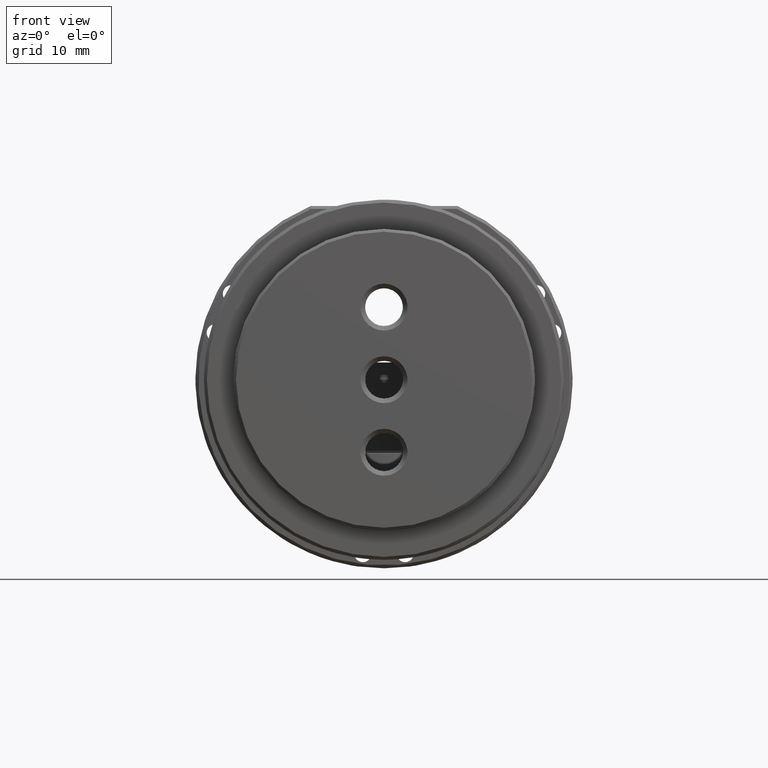
[diagram: clean part render]
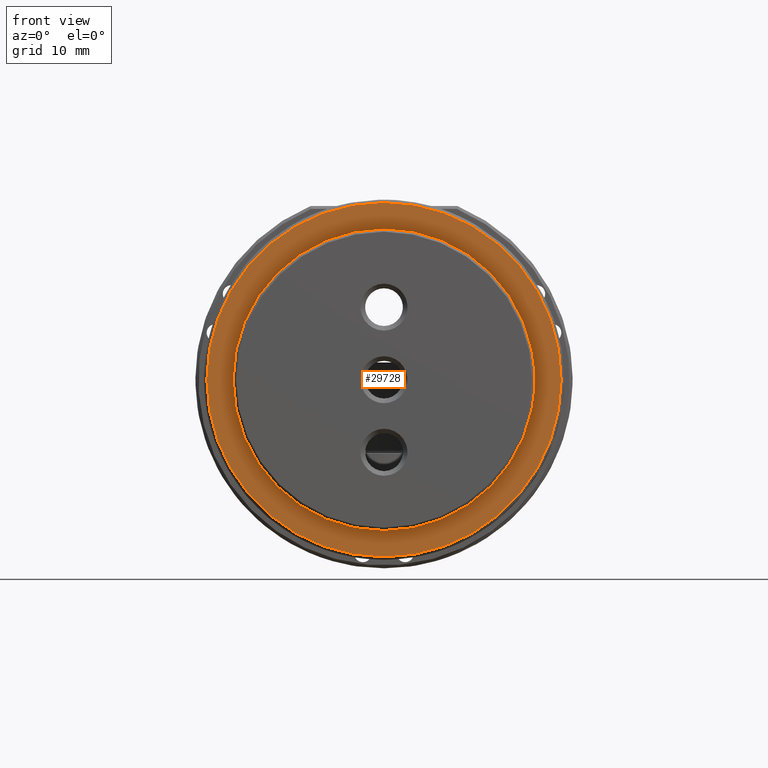
[diagram: same view with one face highlighted and labeled with its STEP entity id]
A machine part, front view. The second image highlights one B-rep face of the part: STEP entity #29728.
In plain terms, the highlighted planar face has unit normal (0, -1, 0).
Its self-contained STEP definition (entity closure, byte-faithful):
#932 = DIRECTION ( 'NONE',  ( 0.000000000000000000, -1.000000000000000000, 0.000000000000000000 ) ) ;
#1229 = DIRECTION ( 'NONE',  ( 0.000000000000000000, -1.000000000000000000, 0.000000000000000000 ) ) ;
#2752 = EDGE_CURVE ( 'NONE', #29478, #44350, #23465, .T. ) ;
#4685 = ORIENTED_EDGE ( 'NONE', *, *, #23019, .T. ) ;
#5302 = CIRCLE ( 'NONE', #6064, 15.49799999999999400 ) ;
#5541 = VERTEX_POINT ( 'NONE', #10091 ) ;
#6064 = AXIS2_PLACEMENT_3D ( 'NONE', #37342, #1229, #50073 ) ;
#10091 = CARTESIAN_POINT ( 'NONE',  ( -1.040834085586084257E-13, -13.82473527255162438, 15.49799999999984834 ) ) ;
#10678 = DIRECTION ( 'NONE',  ( 0.000000000000000000, 0.000000000000000000, -1.000000000000000000 ) ) ;
#12953 = PLANE ( 'NONE',  #36786 ) ;
#14664 = CARTESIAN_POINT ( 'NONE',  ( -1.040834085586084257E-13, -13.82473527255162438, -1.457167719820517959E-13 ) ) ;
#14814 = CARTESIAN_POINT ( 'NONE',  ( -1.040834085586084257E-13, -13.82473527255162438, 13.19799999999985296 ) ) ;
#15465 = EDGE_LOOP ( 'NONE', ( #21638, #4685 ) ) ;
#15989 = DIRECTION ( 'NONE',  ( 0.000000000000000000, -1.000000000000000000, 0.000000000000000000 ) ) ;
#16578 = CARTESIAN_POINT ( 'NONE',  ( -1.021701428643005142E-13, -13.82473527255162438, -15.49800000000013966 ) ) ;
#21611 = CARTESIAN_POINT ( 'NONE',  ( -1.056996974041231088E-13, -13.82473527255162438, -13.19800000000014428 ) ) ;
#21638 = ORIENTED_EDGE ( 'NONE', *, *, #32343, .T. ) ;
#23019 = EDGE_CURVE ( 'NONE', #44359, #5541, #32152, .T. ) ;
#23465 = CIRCLE ( 'NONE', #41279, 13.19799999999999862 ) ;
#28908 = DIRECTION ( 'NONE',  ( 0.000000000000000000, 0.000000000000000000, 1.000000000000000000 ) ) ;
#29478 = VERTEX_POINT ( 'NONE', #14814 ) ;
#29728 = ADVANCED_FACE ( 'NONE', ( #41103, #33663 ), #12953, .T. ) ;
#29931 = CARTESIAN_POINT ( 'NONE',  ( -15.74800000000010591, -13.82473527255162438, -1.457167719820517959E-13 ) ) ;
#30873 = DIRECTION ( 'NONE',  ( 0.000000000000000000, -1.000000000000000000, 0.000000000000000000 ) ) ;
#31850 = ORIENTED_EDGE ( 'NONE', *, *, #35611, .F. ) ;
#32152 = CIRCLE ( 'NONE', #45746, 15.49799999999999400 ) ;
#32343 = EDGE_CURVE ( 'NONE', #5541, #44359, #5302, .T. ) ;
#33663 = FACE_BOUND ( 'NONE', #48358, .T. ) ;
#35611 = EDGE_CURVE ( 'NONE', #44350, #29478, #44330, .T. ) ;
#35661 = DIRECTION ( 'NONE',  ( 0.000000000000000000, 0.000000000000000000, -1.000000000000000000 ) ) ;
#36269 = DIRECTION ( 'NONE',  ( 0.000000000000000000, 0.000000000000000000, -1.000000000000000000 ) ) ;
#36786 = AXIS2_PLACEMENT_3D ( 'NONE', #29931, #49603, #28908 ) ;
#37342 = CARTESIAN_POINT ( 'NONE',  ( -1.040834085586084257E-13, -13.82473527255162438, -1.457167719820517959E-13 ) ) ;
#41103 = FACE_OUTER_BOUND ( 'NONE', #15465, .T. ) ;
#41279 = AXIS2_PLACEMENT_3D ( 'NONE', #14664, #30873, #10678 ) ;
#42654 = AXIS2_PLACEMENT_3D ( 'NONE', #48130, #15989, #35661 ) ;
#43339 = ORIENTED_EDGE ( 'NONE', *, *, #2752, .F. ) ;
#44330 = CIRCLE ( 'NONE', #42654, 13.19799999999999862 ) ;
#44350 = VERTEX_POINT ( 'NONE', #21611 ) ;
#44359 = VERTEX_POINT ( 'NONE', #16578 ) ;
#45746 = AXIS2_PLACEMENT_3D ( 'NONE', #48727, #932, #36269 ) ;
#48130 = CARTESIAN_POINT ( 'NONE',  ( -1.040834085586084257E-13, -13.82473527255162438, -1.457167719820517959E-13 ) ) ;
#48358 = EDGE_LOOP ( 'NONE', ( #43339, #31850 ) ) ;
#48727 = CARTESIAN_POINT ( 'NONE',  ( -1.040834085586084257E-13, -13.82473527255162438, -1.457167719820517959E-13 ) ) ;
#49603 = DIRECTION ( 'NONE',  ( 0.000000000000000000, -1.000000000000000000, 0.000000000000000000 ) ) ;
#50073 = DIRECTION ( 'NONE',  ( 0.000000000000000000, 0.000000000000000000, -1.000000000000000000 ) ) ;